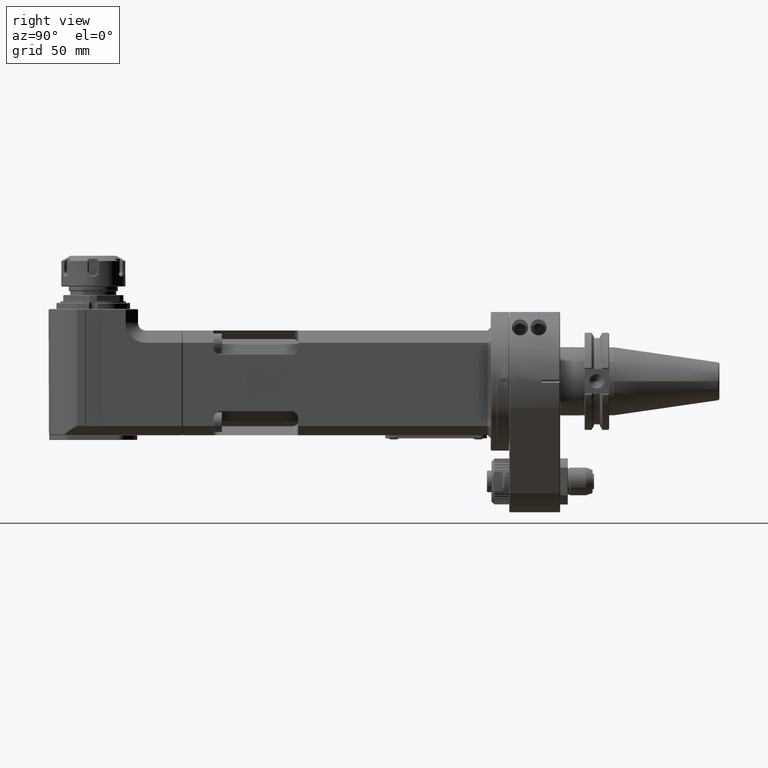
[diagram: clean part render]
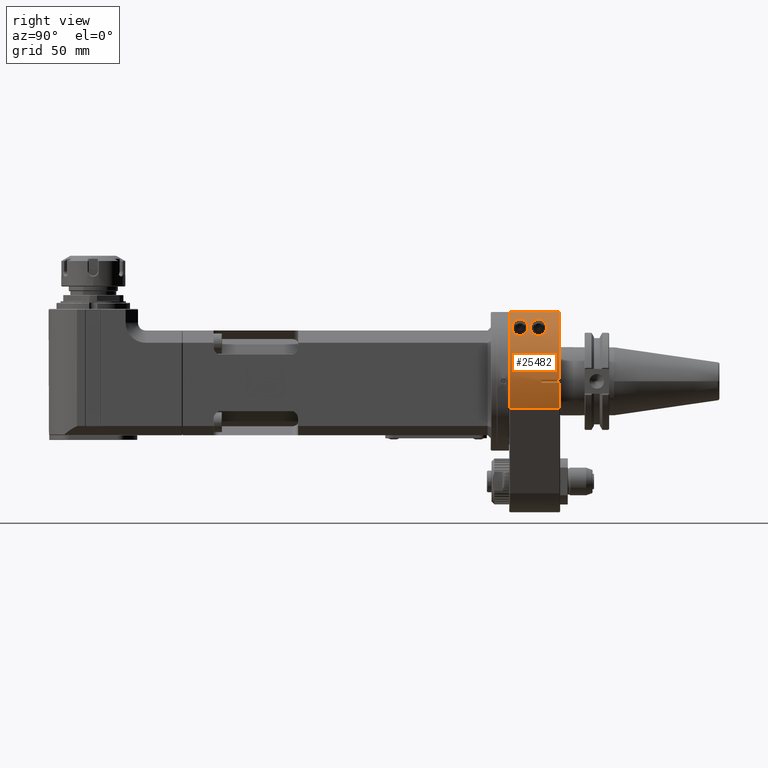
[diagram: same view with one face highlighted and labeled with its STEP entity id]
A machine part, right view. The second image highlights one B-rep face of the part: STEP entity #25482.
In plain terms, the highlighted cylindrical surface (partial cylindrical patch) has radius 45 mm, axis along (0, 1, 0).
Its self-contained STEP definition (entity closure, byte-faithful):
#1522=FACE_BOUND('',#4822,.T.);
#1523=FACE_BOUND('',#4823,.T.);
#1945=B_SPLINE_CURVE_WITH_KNOTS('',3,(#49084,#49085,#49086,#49087,#49088,
#49089,#49090,#49091,#49092,#49093,#49094,#49095,#49096,#49097,#49098,#49099,
#49100,#49101,#49102,#49103,#49104,#49105,#49106),.UNSPECIFIED.,.F.,.F.,
(4,2,2,2,2,3,2,2,2,2,4),(-1.14650177911681,-0.782118711859802,-0.417735644602789,
-0.208867822301395,-0.104433911150697,0.,0.104433911150697,0.208867822301395,
0.417735644602789,0.782118711859802,1.14650177911681),.UNSPECIFIED.);
#1946=B_SPLINE_CURVE_WITH_KNOTS('',3,(#49107,#49108,#49109,#49110,#49111,
#49112,#49113,#49114,#49115,#49116,#49117,#49118,#49119,#49120,#49121,#49122,
#49123,#49124,#49125,#49126),.UNSPECIFIED.,.F.,.F.,(4,2,2,2,2,2,2,2,2,4),
(1.14650177911681,1.42316705646968,1.69983233382254,1.91463594485582,2.02203775037247,
2.12943955588911,2.3217079428636,2.51397632983809,2.81307214595482,3.11216796207156),
 .UNSPECIFIED.);
#1947=B_SPLINE_CURVE_WITH_KNOTS('',3,(#49129,#49130,#49131,#49132,#49133,
#49134,#49135,#49136,#49137,#49138,#49139,#49140,#49141,#49142,#49143,#49144,
#49145,#49146,#49147,#49148),.UNSPECIFIED.,.F.,.F.,(4,2,2,2,2,2,2,2,2,4),
(1.12703774249658,1.40370301984945,1.68036829720231,1.89517190823559,2.00257371375224,
2.10997551926888,2.30224390624337,2.49451229321786,2.79360810933459,3.09270392545133),
 .UNSPECIFIED.);
#1948=B_SPLINE_CURVE_WITH_KNOTS('',3,(#49149,#49150,#49151,#49152,#49153,
#49154,#49155,#49156,#49157,#49158,#49159,#49160,#49161,#49162,#49163,#49164,
#49165,#49166,#49167,#49168,#49169,#49170,#49171),.UNSPECIFIED.,.F.,.F.,
(4,2,2,2,2,3,2,2,2,2,4),(3.09270392545133,3.45708699270834,3.82147005996535,
4.03033788226675,4.13477179341744,4.23920570456814,4.33003417437082,4.4208626441735,
4.72757109503348,5.0469072710491,5.36624344706473),.UNSPECIFIED.);
#3191=FACE_OUTER_BOUND('',#4821,.T.);
#4821=EDGE_LOOP('',(#22859,#22860,#22861,#22862,#22863,#22864,#22865,#22866));
#4822=EDGE_LOOP('',(#22867,#22868));
#4823=EDGE_LOOP('',(#22869,#22870));
#6037=CIRCLE('',#27598,45.);
#6041=CIRCLE('',#27604,45.);
#6186=CIRCLE('',#27906,45.);
#6187=CIRCLE('',#27909,45.);
#7807=LINE('',#47493,#9840);
#7992=LINE('',#49048,#10025);
#8002=LINE('',#49077,#10035);
#8003=LINE('',#49081,#10036);
#9840=VECTOR('',#33380,10.);
#10025=VECTOR('',#34157,32.00018990274);
#10035=VECTOR('',#34191,10.);
#10036=VECTOR('',#34196,11.4999799494804);
#12333=VERTEX_POINT('',#47459);
#12334=VERTEX_POINT('',#47463);
#12336=VERTEX_POINT('',#47468);
#12347=VERTEX_POINT('',#47501);
#12584=VERTEX_POINT('',#49046);
#12586=VERTEX_POINT('',#49067);
#12588=VERTEX_POINT('',#49075);
#12589=VERTEX_POINT('',#49079);
#12590=VERTEX_POINT('',#49082);
#12591=VERTEX_POINT('',#49083);
#12592=VERTEX_POINT('',#49127);
#12593=VERTEX_POINT('',#49128);
#15684=EDGE_CURVE('',#12333,#12334,#6037,.T.);
#15694=EDGE_CURVE('',#12333,#12336,#7807,.T.);
#15698=EDGE_CURVE('',#12347,#12336,#6041,.T.);
#16082=EDGE_CURVE('',#12584,#12334,#7992,.T.);
#16093=EDGE_CURVE('',#12584,#12586,#6186,.T.);
#16096=EDGE_CURVE('',#12588,#12586,#8002,.T.);
#16097=EDGE_CURVE('',#12588,#12589,#6187,.T.);
#16098=EDGE_CURVE('',#12347,#12589,#8003,.T.);
#16099=EDGE_CURVE('',#12590,#12591,#1945,.T.);
#16100=EDGE_CURVE('',#12591,#12590,#1946,.T.);
#16101=EDGE_CURVE('',#12592,#12593,#1947,.T.);
#16102=EDGE_CURVE('',#12593,#12592,#1948,.T.);
#22859=ORIENTED_EDGE('',*,*,#16093,.T.);
#22860=ORIENTED_EDGE('',*,*,#16096,.F.);
#22861=ORIENTED_EDGE('',*,*,#16097,.T.);
#22862=ORIENTED_EDGE('',*,*,#16098,.F.);
#22863=ORIENTED_EDGE('',*,*,#15698,.T.);
#22864=ORIENTED_EDGE('',*,*,#15694,.F.);
#22865=ORIENTED_EDGE('',*,*,#15684,.T.);
#22866=ORIENTED_EDGE('',*,*,#16082,.F.);
#22867=ORIENTED_EDGE('',*,*,#16099,.T.);
#22868=ORIENTED_EDGE('',*,*,#16100,.T.);
#22869=ORIENTED_EDGE('',*,*,#16101,.F.);
#22870=ORIENTED_EDGE('',*,*,#16102,.F.);
#24192=CYLINDRICAL_SURFACE('',#27908,45.);
#25482=ADVANCED_FACE('',(#3191,#1522,#1523),#24192,.T.);
#27598=AXIS2_PLACEMENT_3D('',#47465,#33371,#33372);
#27604=AXIS2_PLACEMENT_3D('',#47502,#33389,#33390);
#27906=AXIS2_PLACEMENT_3D('',#49071,#34185,#34186);
#27908=AXIS2_PLACEMENT_3D('',#49078,#34192,#34193);
#27909=AXIS2_PLACEMENT_3D('',#49080,#34194,#34195);
#33371=DIRECTION('center_axis',(0.,1.,0.));
#33372=DIRECTION('ref_axis',(1.,0.,2.109027738445E-8));
#33380=DIRECTION('',(0.,1.,0.));
#33389=DIRECTION('center_axis',(0.,-1.,0.));
#33390=DIRECTION('ref_axis',(0.999758397003229,0.,0.0219806192254406));
#34157=DIRECTION('',(1.46770612851E-13,-1.,-1.414415739578E-13));
#34185=DIRECTION('center_axis',(0.,-1.,0.));
#34186=DIRECTION('ref_axis',(0.923076922750328,0.,-0.384615385399212));
#34191=DIRECTION('',(0.,1.,0.));
#34192=DIRECTION('center_axis',(0.,1.,0.));
#34193=DIRECTION('ref_axis',(1.,0.,0.));
#34194=DIRECTION('center_axis',(0.,-1.,0.));
#34195=DIRECTION('ref_axis',(0.999758397003229,0.,-0.0219806192254506));
#34196=DIRECTION('',(5.7409753551518E-9,-0.999999999999966,-2.61117230017191E-7));
#47459=CARTESIAN_POINT('',(0.750000000009649,0.50022981440102,44.9937495655045));
#47463=CARTESIAN_POINT('',(41.5384615225711,0.500114907696063,-17.3076923458251));
#47465=CARTESIAN_POINT('Origin',(-8.393285966166E-13,0.5002298153949,3.170797058329E-13));
#47468=CARTESIAN_POINT('',(0.750000000011856,32.4999739345885,44.9937495654133));
#47493=CARTESIAN_POINT('',(0.75,0.,44.9937495659119));
#47501=CARTESIAN_POINT('',(44.989128046026,32.4999736150656,0.989129648273171));
#47502=CARTESIAN_POINT('Origin',(-3.67261766546E-13,32.49997393338,6.679101816145E-13));
#49046=CARTESIAN_POINT('',(41.5384614538739,32.5003083543191,-17.3076923172041));
#49048=CARTESIAN_POINT('',(41.53846152241,32.50031310292,-17.30769234576));
#49067=CARTESIAN_POINT('',(44.9891278655388,32.50061634714,-0.989127866035738));
#49071=CARTESIAN_POINT('Origin',(9.166001391305E-13,32.50061634806,1.321165499304E-13));
#49075=CARTESIAN_POINT('',(44.9891278654243,21.,-0.989127865849535));
#49077=CARTESIAN_POINT('',(44.9891278651453,0.,-0.989127865145143));
#49078=CARTESIAN_POINT('Origin',(0.,0.,0.));
#49079=CARTESIAN_POINT('',(44.9891278410214,21.,0.989127830500464));
#49080=CARTESIAN_POINT('Origin',(0.,21.,0.));
#49081=CARTESIAN_POINT('',(44.98912775313,32.49997994948,0.9891308219972));
#49082=CARTESIAN_POINT('',(28.28427124746,1.75,35.));
#49083=CARTESIAN_POINT('',(28.2842712474619,12.25,35.));
#49084=CARTESIAN_POINT('Ctrl Pts',(28.2842712474619,1.75,35.));
#49085=CARTESIAN_POINT('Ctrl Pts',(27.3395744064252,1.75,35.7634303342429));
#49086=CARTESIAN_POINT('Ctrl Pts',(26.2844532844903,1.92201917330533,36.5476501176263));
#49087=CARTESIAN_POINT('Ctrl Pts',(24.1877886998845,2.59849344728223,37.9678032398534));
#49088=CARTESIAN_POINT('Ctrl Pts',(23.1451580209524,3.09643341814543,38.6052267894512));
#49089=CARTESIAN_POINT('Ctrl Pts',(21.736027942972,4.10795048147965,39.4067759231211));
#49090=CARTESIAN_POINT('Ctrl Pts',(21.205197932326,4.57457338079454,39.6931515616155));
#49091=CARTESIAN_POINT('Ctrl Pts',(20.6004725359246,5.39847605858281,40.0084016967221));
#49092=CARTESIAN_POINT('Ctrl Pts',(20.4308787949815,5.6935599483935,40.0948518926029));
#49093=CARTESIAN_POINT('Ctrl Pts',(20.1921836667419,6.32028195020684,40.2155882536973));
#49094=CARTESIAN_POINT('Ctrl Pts',(20.1230589126007,6.65188696283101,40.25));
#49095=CARTESIAN_POINT('Ctrl Pts',(20.1230589126007,7.,40.25));
#49096=CARTESIAN_POINT('Ctrl Pts',(20.1230589126007,7.34811303716899,40.25));
#49097=CARTESIAN_POINT('Ctrl Pts',(20.1921836667419,7.67971804979316,40.2155882536973));
#49098=CARTESIAN_POINT('Ctrl Pts',(20.4308787949815,8.3064400516065,40.0948518926029));
#49099=CARTESIAN_POINT('Ctrl Pts',(20.6004725359246,8.60152394141719,40.0084016967221));
#49100=CARTESIAN_POINT('Ctrl Pts',(21.205197932326,9.42542661920546,39.6931515616155));
#49101=CARTESIAN_POINT('Ctrl Pts',(21.736027942972,9.89204951852035,39.4067759231211));
#49102=CARTESIAN_POINT('Ctrl Pts',(23.1451580209524,10.9035665818546,38.6052267894512));
#49103=CARTESIAN_POINT('Ctrl Pts',(24.1877886998846,11.4015065527178,37.9678032398534));
#49104=CARTESIAN_POINT('Ctrl Pts',(26.2844532844903,12.0779808266947,36.5476501176263));
#49105=CARTESIAN_POINT('Ctrl Pts',(27.3395744064252,12.25,35.7634303342429));
#49106=CARTESIAN_POINT('Ctrl Pts',(28.2842712474619,12.25,35.));
#49107=CARTESIAN_POINT('Ctrl Pts',(28.2842712474619,12.25,35.));
#49108=CARTESIAN_POINT('Ctrl Pts',(29.0015515961545,12.25,34.4203499444887));
#49109=CARTESIAN_POINT('Ctrl Pts',(29.7639205151206,12.1496349974932,33.7642896784261));
#49110=CARTESIAN_POINT('Ctrl Pts',(31.1742531823703,11.6505831755753,32.4666621976752));
#49111=CARTESIAN_POINT('Ctrl Pts',(31.8224991380334,11.2505436414047,31.825922438946));
#49112=CARTESIAN_POINT('Ctrl Pts',(32.7474159380966,10.2944251270807,30.8698039246219));
#49113=CARTESIAN_POINT('Ctrl Pts',(33.1199555105931,9.73942525702287,30.4665647266752));
#49114=CARTESIAN_POINT('Ctrl Pts',(33.5004710769903,8.7727316964671,30.0458680561456));
#49115=CARTESIAN_POINT('Ctrl Pts',(33.5990174805533,8.42856425585664,29.9351933925568));
#49116=CARTESIAN_POINT('Ctrl Pts',(33.7302599443358,7.72120618850676,29.7872345674845));
#49117=CARTESIAN_POINT('Ctrl Pts',(33.7629604744608,7.35800601838881,29.75));
#49118=CARTESIAN_POINT('Ctrl Pts',(33.7629604744608,6.3591053767517,29.75));
#49119=CARTESIAN_POINT('Ctrl Pts',(33.6535722435166,5.69196516153304,29.8753243939876));
#49120=CARTESIAN_POINT('Ctrl Pts',(33.2348069350089,4.49755172888651,30.3404935517149));
#49121=CARTESIAN_POINT('Ctrl Pts',(32.92521356894,3.96965246139063,30.6785341111395));
#49122=CARTESIAN_POINT('Ctrl Pts',(32.0579130177422,2.9202859878695,31.5891783172573));
#49123=CARTESIAN_POINT('Ctrl Pts',(31.3794339061692,2.45225126821455,32.2703807384322));
#49124=CARTESIAN_POINT('Ctrl Pts',(29.8806786317571,1.86725997996511,33.6629083638159));
#49125=CARTESIAN_POINT('Ctrl Pts',(29.0597048448016,1.75,34.3733550228128));
#49126=CARTESIAN_POINT('Ctrl Pts',(28.2842712474619,1.75,35.));
#49127=CARTESIAN_POINT('',(28.28427124746,13.75,35.));
#49128=CARTESIAN_POINT('',(28.2842712474619,24.25,35.));
#49129=CARTESIAN_POINT('Ctrl Pts',(28.2842712474619,13.75,35.));
#49130=CARTESIAN_POINT('Ctrl Pts',(29.0015515961545,13.75,34.4203499444887));
#49131=CARTESIAN_POINT('Ctrl Pts',(29.7639205151206,13.8503650025068,33.7642896784261));
#49132=CARTESIAN_POINT('Ctrl Pts',(31.1742531823703,14.3494168244247,32.4666621976752));
#49133=CARTESIAN_POINT('Ctrl Pts',(31.8224991380334,14.7494563585953,31.825922438946));
#49134=CARTESIAN_POINT('Ctrl Pts',(32.7474159380966,15.7055748729193,30.8698039246219));
#49135=CARTESIAN_POINT('Ctrl Pts',(33.1199555105931,16.2605747429771,30.4665647266752));
#49136=CARTESIAN_POINT('Ctrl Pts',(33.5004710769903,17.2272683035329,30.0458680561456));
#49137=CARTESIAN_POINT('Ctrl Pts',(33.5990174805533,17.5714357441434,29.9351933925568));
#49138=CARTESIAN_POINT('Ctrl Pts',(33.7302599443358,18.2787938114932,29.7872345674845));
#49139=CARTESIAN_POINT('Ctrl Pts',(33.7629604744608,18.6419939816112,29.75));
#49140=CARTESIAN_POINT('Ctrl Pts',(33.7629604744608,19.6408946232483,29.75));
#49141=CARTESIAN_POINT('Ctrl Pts',(33.6535722435166,20.308034838467,29.8753243939876));
#49142=CARTESIAN_POINT('Ctrl Pts',(33.2348069350089,21.5024482711135,30.3404935517149));
#49143=CARTESIAN_POINT('Ctrl Pts',(32.92521356894,22.0303475386094,30.6785341111395));
#49144=CARTESIAN_POINT('Ctrl Pts',(32.0579130177422,23.0797140121305,31.5891783172573));
#49145=CARTESIAN_POINT('Ctrl Pts',(31.3794339061692,23.5477487317855,32.2703807384322));
#49146=CARTESIAN_POINT('Ctrl Pts',(29.8806786317571,24.1327400200349,33.6629083638159));
#49147=CARTESIAN_POINT('Ctrl Pts',(29.0597048448016,24.25,34.3733550228128));
#49148=CARTESIAN_POINT('Ctrl Pts',(28.2842712474619,24.25,35.));
#49149=CARTESIAN_POINT('Ctrl Pts',(28.2842712474619,24.25,35.));
#49150=CARTESIAN_POINT('Ctrl Pts',(27.3395744064252,24.25,35.7634303342429));
#49151=CARTESIAN_POINT('Ctrl Pts',(26.2844532844903,24.0779808266947,36.5476501176263));
#49152=CARTESIAN_POINT('Ctrl Pts',(24.1877886998846,23.4015065527178,37.9678032398534));
#49153=CARTESIAN_POINT('Ctrl Pts',(23.1451580209524,22.9035665818546,38.6052267894512));
#49154=CARTESIAN_POINT('Ctrl Pts',(21.736027942972,21.8920495185204,39.4067759231211));
#49155=CARTESIAN_POINT('Ctrl Pts',(21.205197932326,21.4254266192055,39.6931515616155));
#49156=CARTESIAN_POINT('Ctrl Pts',(20.6004725359246,20.6015239414172,40.0084016967221));
#49157=CARTESIAN_POINT('Ctrl Pts',(20.4308787949815,20.3064400516065,40.0948518926029));
#49158=CARTESIAN_POINT('Ctrl Pts',(20.1921836667419,19.6797180497932,40.2155882536973));
#49159=CARTESIAN_POINT('Ctrl Pts',(20.1230589126007,19.348113037169,40.25));
#49160=CARTESIAN_POINT('Ctrl Pts',(20.1230589126007,19.,40.25));
#49161=CARTESIAN_POINT('Ctrl Pts',(20.1230589126007,18.6972384339911,40.25));
#49162=CARTESIAN_POINT('Ctrl Pts',(20.1798103695348,18.375721667411,40.2217557496493));
#49163=CARTESIAN_POINT('Ctrl Pts',(20.3939049512118,17.7722859383486,40.1136263996317));
#49164=CARTESIAN_POINT('Ctrl Pts',(20.5493321444653,17.4895582343389,40.0344723485156));
#49165=CARTESIAN_POINT('Ctrl Pts',(21.2660892189227,16.43879409014,39.6628473262856));
#49166=CARTESIAN_POINT('Ctrl Pts',(22.158919449635,15.7520539680295,39.1766751704882));
#49167=CARTESIAN_POINT('Ctrl Pts',(23.7582841808269,14.8042061252955,38.2288273277543));
#49168=CARTESIAN_POINT('Ctrl Pts',(24.6829448941409,14.4114641674332,37.6432754436484));
#49169=CARTESIAN_POINT('Ctrl Pts',(26.5318999397921,13.8831891092618,36.3637490110355));
#49170=CARTESIAN_POINT('Ctrl Pts',(27.456362642977,13.75,35.6690511867817));
#49171=CARTESIAN_POINT('Ctrl Pts',(28.2842712474619,13.75,35.));